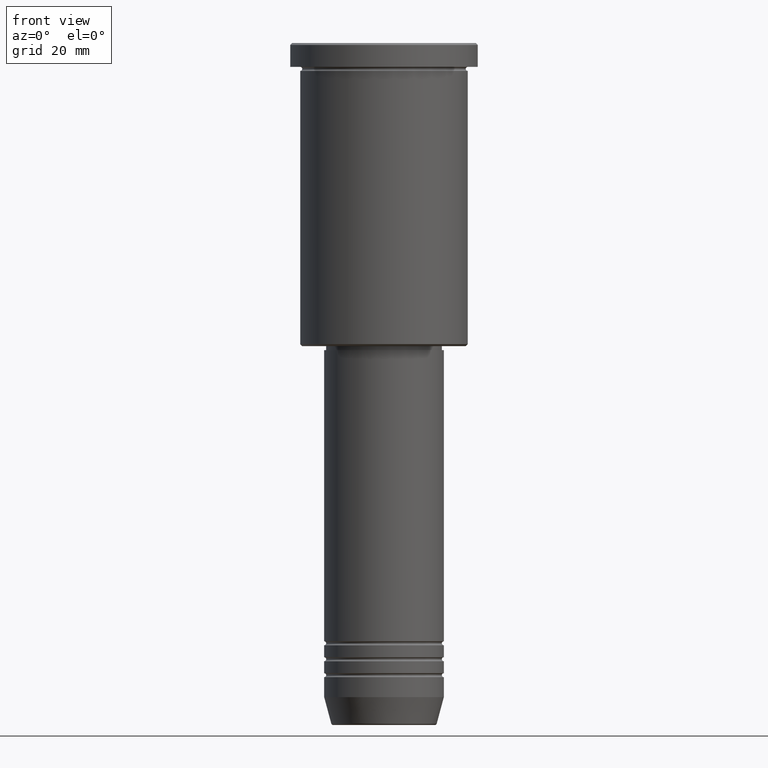
[diagram: clean part render]
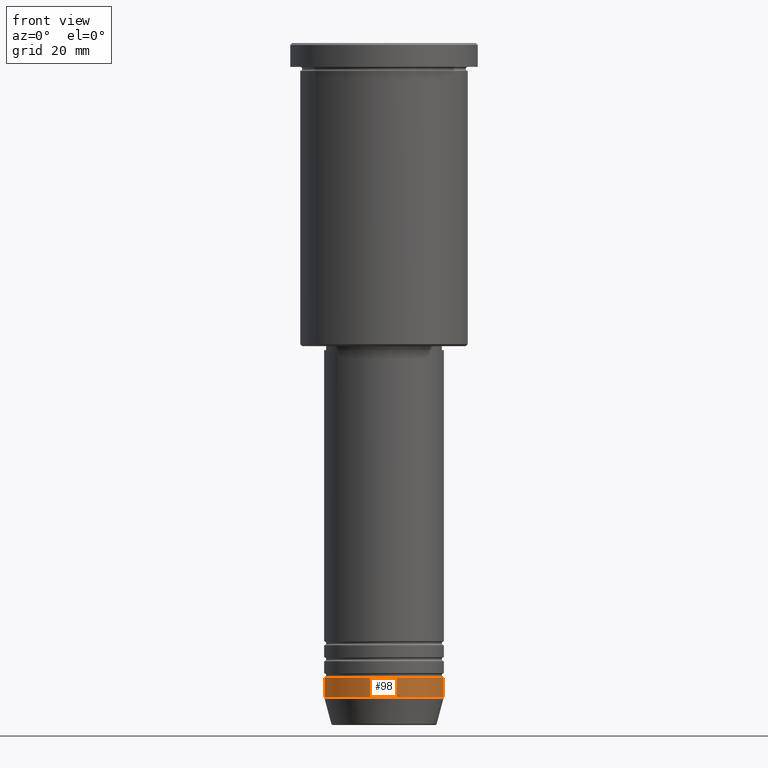
[diagram: same view with one face highlighted and labeled with its STEP entity id]
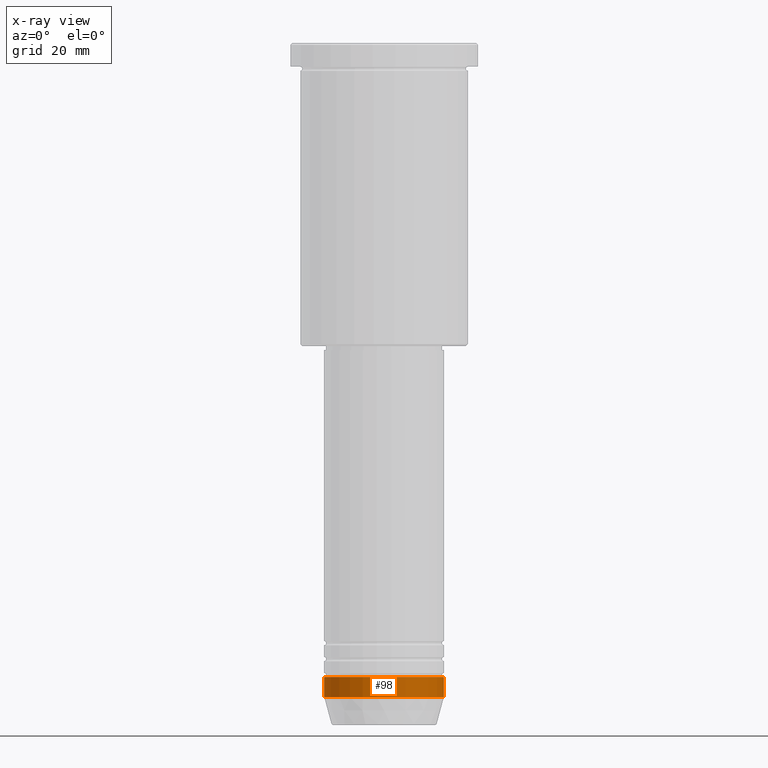
[diagram: x-ray of the same camera — body ghosted, the highlighted face saturated]
A machine part, front view. The second image highlights one B-rep face of the part: STEP entity #98.
The next image is the same camera in x-ray: the body ghosted, the highlighted face saturated — about 0% of this face is hidden behind the body in this view.
In plain terms, the highlighted cylindrical surface (partial cylindrical patch) has radius 15 mm, axis along (-0, -0, 1).
Its self-contained STEP definition (entity closure, byte-faithful):
#22 = CARTESIAN_POINT ( 'NONE',  ( -15.00000000000000000, 1.836970198721029589E-15, -163.9999999999999716 ) ) ;
#35 = EDGE_CURVE ( 'NONE', #558, #897, #827, .T. ) ;
#87 = CIRCLE ( 'NONE', #391, 15.00000000000000000 ) ;
#98 = ADVANCED_FACE ( 'NONE', ( #1111 ), #313, .T. ) ;
#103 = AXIS2_PLACEMENT_3D ( 'NONE', #658, #750, #490 ) ;
#126 = EDGE_CURVE ( 'NONE', #558, #130, #732, .T. ) ;
#130 = VERTEX_POINT ( 'NONE', #305 ) ;
#185 = EDGE_LOOP ( 'NONE', ( #675, #358, #1136, #244 ) ) ;
#217 = DIRECTION ( 'NONE',  ( 1.000000000000000000, 0.000000000000000000, 0.000000000000000000 ) ) ;
#244 = ORIENTED_EDGE ( 'NONE', *, *, #972, .F. ) ;
#246 = DIRECTION ( 'NONE',  ( -0.000000000000000000, -0.000000000000000000, 1.000000000000000000 ) ) ;
#251 = DIRECTION ( 'NONE',  ( 1.000000000000000000, 0.000000000000000000, 0.000000000000000000 ) ) ;
#261 = VECTOR ( 'NONE', #488, 1000.000000000000000 ) ;
#305 = CARTESIAN_POINT ( 'NONE',  ( 15.00000000000000000, 0.000000000000000000, -163.9999999999999716 ) ) ;
#313 = CYLINDRICAL_SURFACE ( 'NONE', #846, 15.00000000000000000 ) ;
#358 = ORIENTED_EDGE ( 'NONE', *, *, #126, .T. ) ;
#373 = DIRECTION ( 'NONE',  ( -0.000000000000000000, -0.000000000000000000, 1.000000000000000000 ) ) ;
#379 = CARTESIAN_POINT ( 'NONE',  ( 15.00000000000000000, 0.000000000000000000, -158.9999999999999716 ) ) ;
#391 = AXIS2_PLACEMENT_3D ( 'NONE', #690, #246, #251 ) ;
#488 = DIRECTION ( 'NONE',  ( -0.000000000000000000, -0.000000000000000000, 1.000000000000000000 ) ) ;
#490 = DIRECTION ( 'NONE',  ( 1.000000000000000000, 0.000000000000000000, 0.000000000000000000 ) ) ;
#537 = CARTESIAN_POINT ( 'NONE',  ( -15.00000000000000000, 1.836970198721029589E-15, 0.000000000000000000 ) ) ;
#558 = VERTEX_POINT ( 'NONE', #22 ) ;
#567 = EDGE_CURVE ( 'NONE', #130, #593, #657, .T. ) ;
#576 = CARTESIAN_POINT ( 'NONE',  ( 15.00000000000000000, 0.000000000000000000, 0.000000000000000000 ) ) ;
#593 = VERTEX_POINT ( 'NONE', #379 ) ;
#651 = VECTOR ( 'NONE', #373, 1000.000000000000000 ) ;
#657 = LINE ( 'NONE', #576, #261 ) ;
#658 = CARTESIAN_POINT ( 'NONE',  ( 0.000000000000000000, 0.000000000000000000, -163.9999999999999716 ) ) ;
#675 = ORIENTED_EDGE ( 'NONE', *, *, #35, .F. ) ;
#690 = CARTESIAN_POINT ( 'NONE',  ( 0.000000000000000000, 0.000000000000000000, -158.9999999999999716 ) ) ;
#732 = CIRCLE ( 'NONE', #103, 15.00000000000000000 ) ;
#750 = DIRECTION ( 'NONE',  ( -0.000000000000000000, -0.000000000000000000, 1.000000000000000000 ) ) ;
#827 = LINE ( 'NONE', #537, #651 ) ;
#846 = AXIS2_PLACEMENT_3D ( 'NONE', #1033, #949, #217 ) ;
#897 = VERTEX_POINT ( 'NONE', #979 ) ;
#949 = DIRECTION ( 'NONE',  ( -0.000000000000000000, -0.000000000000000000, 1.000000000000000000 ) ) ;
#972 = EDGE_CURVE ( 'NONE', #897, #593, #87, .T. ) ;
#979 = CARTESIAN_POINT ( 'NONE',  ( -15.00000000000000000, 1.836970198721029589E-15, -158.9999999999999716 ) ) ;
#1033 = CARTESIAN_POINT ( 'NONE',  ( 0.000000000000000000, 0.000000000000000000, 0.000000000000000000 ) ) ;
#1111 = FACE_OUTER_BOUND ( 'NONE', #185, .T. ) ;
#1136 = ORIENTED_EDGE ( 'NONE', *, *, #567, .T. ) ;